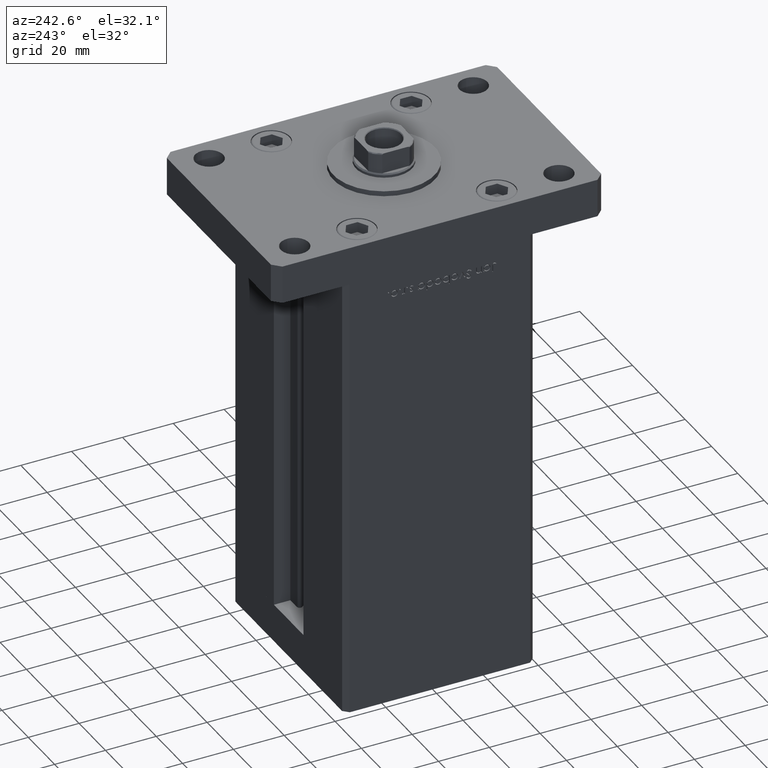
[diagram: clean part render]
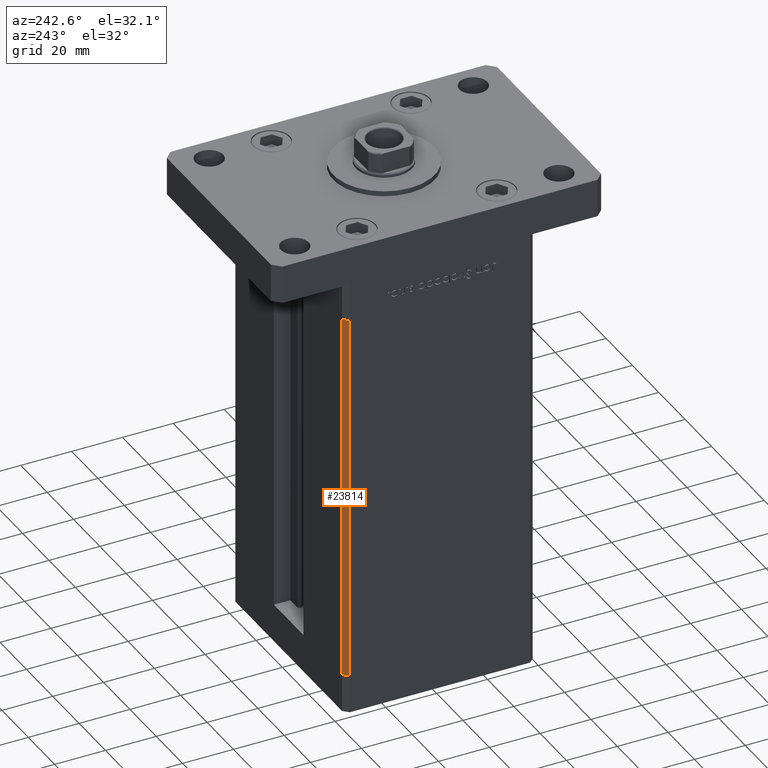
[diagram: same view with one face highlighted and labeled with its STEP entity id]
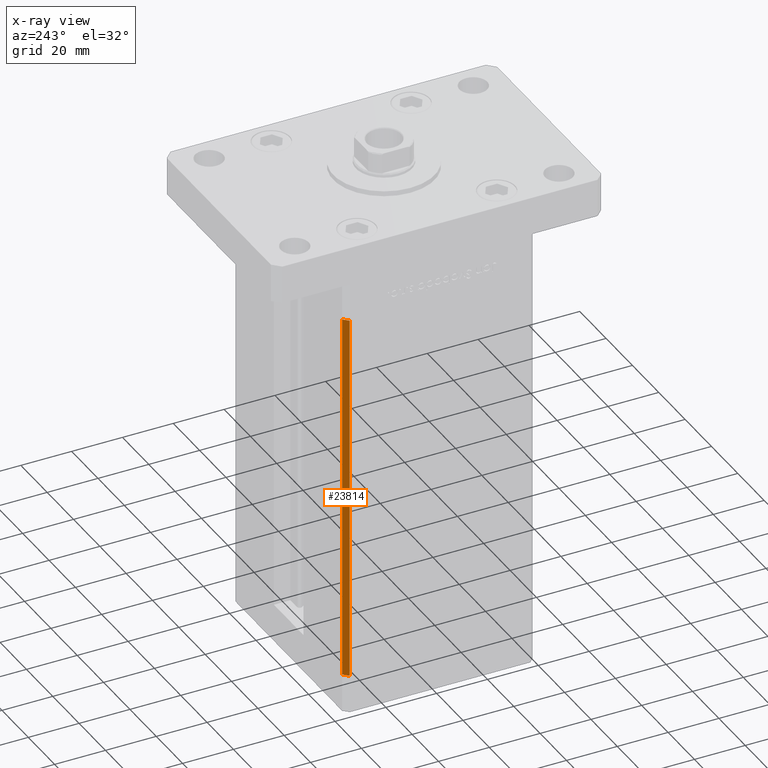
[diagram: x-ray of the same camera — body ghosted, the highlighted face saturated]
A machine part, auxiliary view. The second image highlights one B-rep face of the part: STEP entity #23814.
The next image is the same camera in x-ray: the body ghosted, the highlighted face saturated — about 0% of this face is hidden behind the body in this view.
In plain terms, the highlighted planar face has unit normal (0.7071, -0.7071, 0).
Its self-contained STEP definition (entity closure, byte-faithful):
#1815 = DIRECTION ( 'NONE',  ( 0.7071067811865500152, 0.7071067811865451302, 0.000000000000000000 ) ) ;
#3393 = VERTEX_POINT ( 'NONE', #37769 ) ;
#3708 = DIRECTION ( 'NONE',  ( -0.000000000000000000, -0.000000000000000000, -1.000000000000000000 ) ) ;
#4123 = VECTOR ( 'NONE', #43534, 1000.000000000000114 ) ;
#7810 = ORIENTED_EDGE ( 'NONE', *, *, #53360, .T. ) ;
#8333 = AXIS2_PLACEMENT_3D ( 'NONE', #10469, #31105, #1815 ) ;
#10469 = CARTESIAN_POINT ( 'NONE',  ( -40.50000000000000000, 37.50000000000000711, 146.5000000000000000 ) ) ;
#19675 = VECTOR ( 'NONE', #19859, 1000.000000000000000 ) ;
#19859 = DIRECTION ( 'NONE',  ( -0.000000000000000000, -0.000000000000000000, -1.000000000000000000 ) ) ;
#22190 = LINE ( 'NONE', #51196, #34881 ) ;
#23814 = ADVANCED_FACE ( 'NONE', ( #30318 ), #46834, .F. ) ;
#24673 = VECTOR ( 'NONE', #50564, 1000.000000000000114 ) ;
#25275 = EDGE_CURVE ( 'NONE', #3393, #40662, #39659, .T. ) ;
#25948 = CARTESIAN_POINT ( 'NONE',  ( -42.50000000000000711, 35.50000000000001421, 146.5000000000000000 ) ) ;
#27817 = CARTESIAN_POINT ( 'NONE',  ( -40.50000000000000000, 37.50000000000000711, 146.5000000000000000 ) ) ;
#29958 = CARTESIAN_POINT ( 'NONE',  ( -40.50000000000000000, 37.50000000000000711, 0.000000000000000000 ) ) ;
#30318 = FACE_OUTER_BOUND ( 'NONE', #53197, .T. ) ;
#31105 = DIRECTION ( 'NONE',  ( 0.7071067811865451302, -0.7071067811865500152, 0.000000000000000000 ) ) ;
#31827 = EDGE_CURVE ( 'NONE', #3393, #52326, #35130, .T. ) ;
#34881 = VECTOR ( 'NONE', #3708, 1000.000000000000000 ) ;
#35130 = LINE ( 'NONE', #27817, #4123 ) ;
#35593 = CARTESIAN_POINT ( 'NONE',  ( -40.50000000000000000, 37.50000000000000711, 146.5000000000000000 ) ) ;
#37631 = ORIENTED_EDGE ( 'NONE', *, *, #46876, .F. ) ;
#37769 = CARTESIAN_POINT ( 'NONE',  ( -40.50000000000000000, 37.50000000000000711, 146.5000000000000000 ) ) ;
#38718 = VERTEX_POINT ( 'NONE', #46999 ) ;
#38890 = LINE ( 'NONE', #29958, #24673 ) ;
#39659 = LINE ( 'NONE', #35593, #19675 ) ;
#40662 = VERTEX_POINT ( 'NONE', #48462 ) ;
#43534 = DIRECTION ( 'NONE',  ( -0.7071067811865500152, -0.7071067811865451302, 0.000000000000000000 ) ) ;
#45024 = ORIENTED_EDGE ( 'NONE', *, *, #25275, .T. ) ;
#46834 = PLANE ( 'NONE',  #8333 ) ;
#46876 = EDGE_CURVE ( 'NONE', #52326, #38718, #22190, .T. ) ;
#46999 = CARTESIAN_POINT ( 'NONE',  ( -42.50000000000000711, 35.50000000000001421, 0.000000000000000000 ) ) ;
#48462 = CARTESIAN_POINT ( 'NONE',  ( -40.50000000000000000, 37.50000000000000711, 0.000000000000000000 ) ) ;
#49849 = ORIENTED_EDGE ( 'NONE', *, *, #31827, .F. ) ;
#50564 = DIRECTION ( 'NONE',  ( -0.7071067811865500152, -0.7071067811865451302, 0.000000000000000000 ) ) ;
#51196 = CARTESIAN_POINT ( 'NONE',  ( -42.50000000000000711, 35.50000000000001421, 146.5000000000000000 ) ) ;
#52326 = VERTEX_POINT ( 'NONE', #25948 ) ;
#53197 = EDGE_LOOP ( 'NONE', ( #7810, #37631, #49849, #45024 ) ) ;
#53360 = EDGE_CURVE ( 'NONE', #40662, #38718, #38890, .T. ) ;